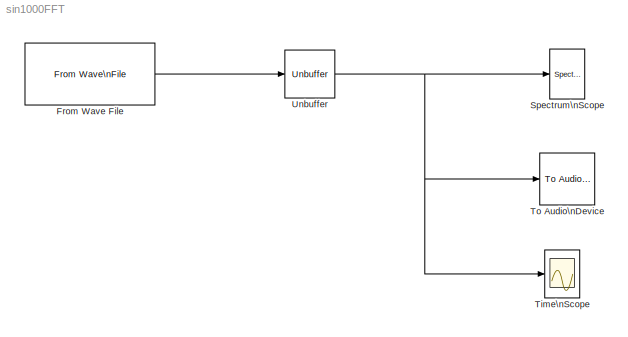
MODEL sin1000FFT
KIND model
BLOCK [Reference] From Wave File  REF=dspwin32/From Wave\nFile
  FileName = sin1000.wav
  MinBufSize = 256
  Ports = [0, 1]
  SamplesPerFrame = 256
  SourceBlock = dspwin32/From Wave\nFile
  SourceType = From Wave File
  bLoop = off
  dType = double
  firstSampleOutput = off
  lastSampleOutput = off
  restartMode = immediately after last sample
  timesToPlay = 1
BLOCK [Reference] Spectrum\nScope  REF=dspsnks4/Spectrum\nScope
  AxisGrid = on
  AxisLegend = off
  AxisProperties = off
  AxisZoom = off
  BufferSize = 128
  DialogController = dspdialog.SpectrumScope
  DialogControllerArgs = DataTag0
  DisplayProperties = off
  Domain = Frequency
  FFTlength = 128
  FigPos = get(0,'defaultfigureposition')
  FrameNumber = on
  FunctionWithSeparateData = off
  HorizSpan = 1
  InheritXIncr = on
  LineProperties = off
  Memory = off
  OpenScopeAtSimStart = on
  OpenScopeImmediately = off
  Overlap = 64
  Ports = [1]
  RTWMemSecDataConstants = Inherit from model
  RTWMemSecDataInternal = Inherit from model
  RTWMemSecDataParameters = Inherit from model
  RTWMemSecFuncExecute = Inherit from model
  RTWMemSecFuncInitTerm = Inherit from model
  RsSpecScope = 50
  ScopeProperties = on
  ShowPortLabels = none
  SourceBlock = dspsnks4/Spectrum\nScope
  SourceType = Spectrum Scope
  SystemSampleTime = -1
  UseBuffer = on
  XIncr = 1.0
  XLabel = Samples
  XLimit = Auto
  XMax = 1
  XMin = 0
  XRange = [0...Fs/2]
  XUnits = Hertz
  YLabel = Magnitude-squared, dB
  YMax = 20
  YMin = -0
  YUnits = dB
  betaSpecScope = 5
  inpFftLenInherit = off
  numAvg = 2
  winsampSpecScope = Periodic
  wintypeSpecScope = Hann
BLOCK [Scope] Time\nScope
  DataFormat = Structure
  Floating = off
  NumInputPorts = 1
  Ports = [1]
  SampleTime = 0
BLOCK [Reference] To Audio\nDevice  REF=dspsnks4/To Audio\nDevice
  DialogController = dspDDGCreate
  DialogControllerArgs = DataTag1
  Ports = [1]
  SourceBlock = dspsnks4/To Audio\nDevice
  SourceType = To Audio Device
  autoBufferSize = on
  bufferSize = 4096
  deviceDatatype = Determine from input data type
  deviceName = Default
  inheritSampleRate = on
  queueDuration = 1.0
  sampleRate = 44100
BLOCK [Reference] Unbuffer  REF=dspbuff3/Unbuffer
  Ports = [1, 1]
  SourceBlock = dspbuff3/Unbuffer
  SourceType = Unbuffer
  ic = 0
LINE From Wave File:1 -> Unbuffer:1
NET Unbuffer:1 -> Spectrum\nScope:1, Time\nScope:1, To Audio\nDevice:1
note: NET lines group one-source signal fan-out (src -> all destinations, sorted); 1:1 wires keep LINE
